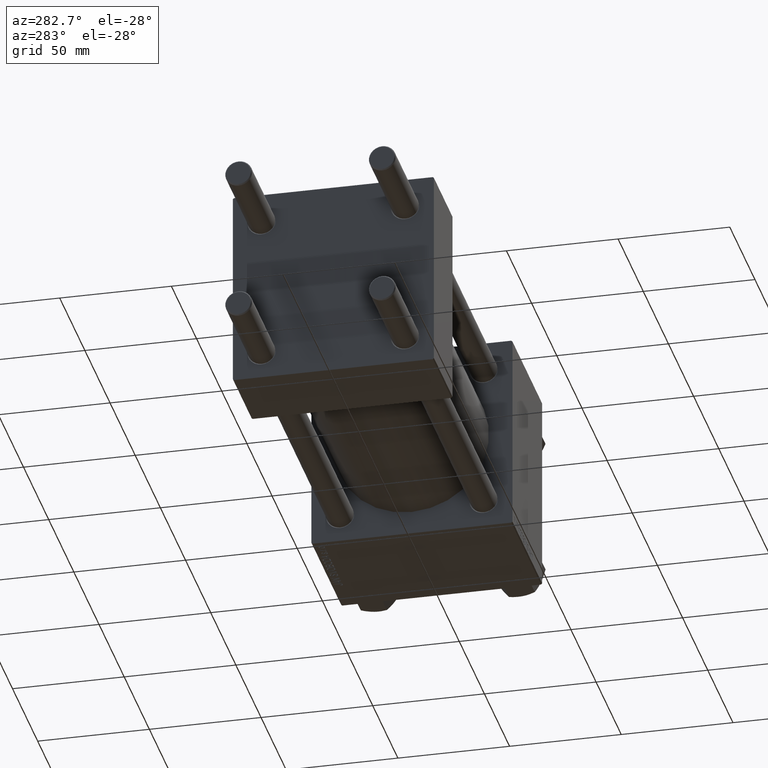
[diagram: clean part render]
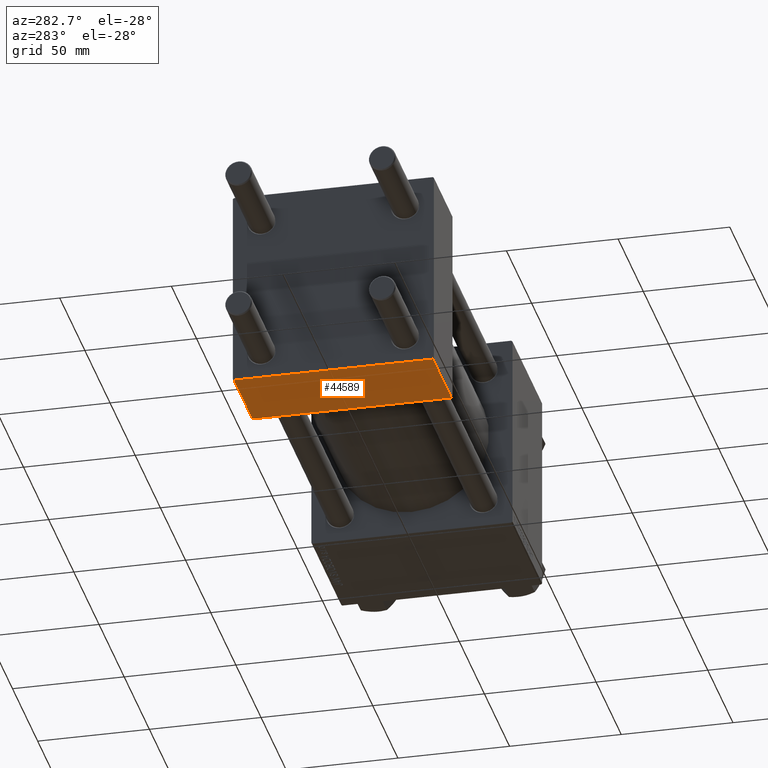
[diagram: same view with one face highlighted and labeled with its STEP entity id]
A machine part, auxiliary view. The second image highlights one B-rep face of the part: STEP entity #44589.
In plain terms, the highlighted planar face has unit normal (0, 0, -1).
Its self-contained STEP definition (entity closure, byte-faithful):
#1231 = LINE ( 'NONE', #12829, #35912 ) ;
#5737 = EDGE_CURVE ( 'NONE', #11253, #43932, #7202, .T. ) ;
#6374 = CARTESIAN_POINT ( 'NONE',  ( 37.00000000000000000, 44.99999999999998579, -44.99999999999998579 ) ) ;
#6376 = EDGE_LOOP ( 'NONE', ( #34499, #34660, #24204, #27441 ) ) ;
#6589 = EDGE_CURVE ( 'NONE', #43932, #11641, #8508, .T. ) ;
#6989 = EDGE_CURVE ( 'NONE', #11253, #12511, #24880, .T. ) ;
#7202 = LINE ( 'NONE', #33729, #35488 ) ;
#8508 = LINE ( 'NONE', #35287, #25874 ) ;
#9709 = VECTOR ( 'NONE', #39763, 1000.000000000000000 ) ;
#11253 = VERTEX_POINT ( 'NONE', #37334 ) ;
#11641 = VERTEX_POINT ( 'NONE', #44042 ) ;
#12485 = CARTESIAN_POINT ( 'NONE',  ( 0.000000000000000000, -44.49999999999995737, -45.00000000000000000 ) ) ;
#12511 = VERTEX_POINT ( 'NONE', #12485 ) ;
#12829 = CARTESIAN_POINT ( 'NONE',  ( 0.000000000000000000, -44.49999999999998579, -45.00000000000000000 ) ) ;
#13819 = CARTESIAN_POINT ( 'NONE',  ( 37.00000000000000000, 44.49999999999998579, -44.99999999999998579 ) ) ;
#24204 = ORIENTED_EDGE ( 'NONE', *, *, #6589, .T. ) ;
#24880 = LINE ( 'NONE', #32933, #9709 ) ;
#25580 = FACE_OUTER_BOUND ( 'NONE', #6376, .T. ) ;
#25874 = VECTOR ( 'NONE', #39564, 1000.000000000000000 ) ;
#27441 = ORIENTED_EDGE ( 'NONE', *, *, #38690, .T. ) ;
#28257 = DIRECTION ( 'NONE',  ( -1.000000000000000000, 0.000000000000000000, 0.000000000000000000 ) ) ;
#32409 = DIRECTION ( 'NONE',  ( 0.000000000000000000, 1.000000000000000000, 1.541976423090495880E-16 ) ) ;
#32933 = CARTESIAN_POINT ( 'NONE',  ( 0.000000000000000000, 44.99999999999998579, -44.99999999999998579 ) ) ;
#33729 = CARTESIAN_POINT ( 'NONE',  ( 37.00000000000000000, 44.49999999999998579, -44.99999999999998579 ) ) ;
#34499 = ORIENTED_EDGE ( 'NONE', *, *, #6989, .F. ) ;
#34660 = ORIENTED_EDGE ( 'NONE', *, *, #5737, .T. ) ;
#35287 = CARTESIAN_POINT ( 'NONE',  ( 37.00000000000000000, 44.99999999999998579, -44.99999999999998579 ) ) ;
#35488 = VECTOR ( 'NONE', #49123, 1000.000000000000000 ) ;
#35912 = VECTOR ( 'NONE', #28257, 1000.000000000000000 ) ;
#37190 = DIRECTION ( 'NONE',  ( 0.000000000000000000, 1.541976423090495880E-16, -1.000000000000000000 ) ) ;
#37334 = CARTESIAN_POINT ( 'NONE',  ( 0.000000000000000000, 44.49999999999998579, -44.99999999999998579 ) ) ;
#38539 = AXIS2_PLACEMENT_3D ( 'NONE', #6374, #37190, #32409 ) ;
#38690 = EDGE_CURVE ( 'NONE', #11641, #12511, #1231, .T. ) ;
#39564 = DIRECTION ( 'NONE',  ( 0.000000000000000000, -1.000000000000000000, -1.541976423090495633E-16 ) ) ;
#39763 = DIRECTION ( 'NONE',  ( 0.000000000000000000, -1.000000000000000000, -1.541976423090495633E-16 ) ) ;
#40974 = PLANE ( 'NONE',  #38539 ) ;
#43932 = VERTEX_POINT ( 'NONE', #13819 ) ;
#44042 = CARTESIAN_POINT ( 'NONE',  ( 37.00000000000000000, -44.49999999999995737, -45.00000000000000000 ) ) ;
#44589 = ADVANCED_FACE ( 'NONE', ( #25580 ), #40974, .T. ) ;
#49123 = DIRECTION ( 'NONE',  ( 1.000000000000000000, 0.000000000000000000, 0.000000000000000000 ) ) ;